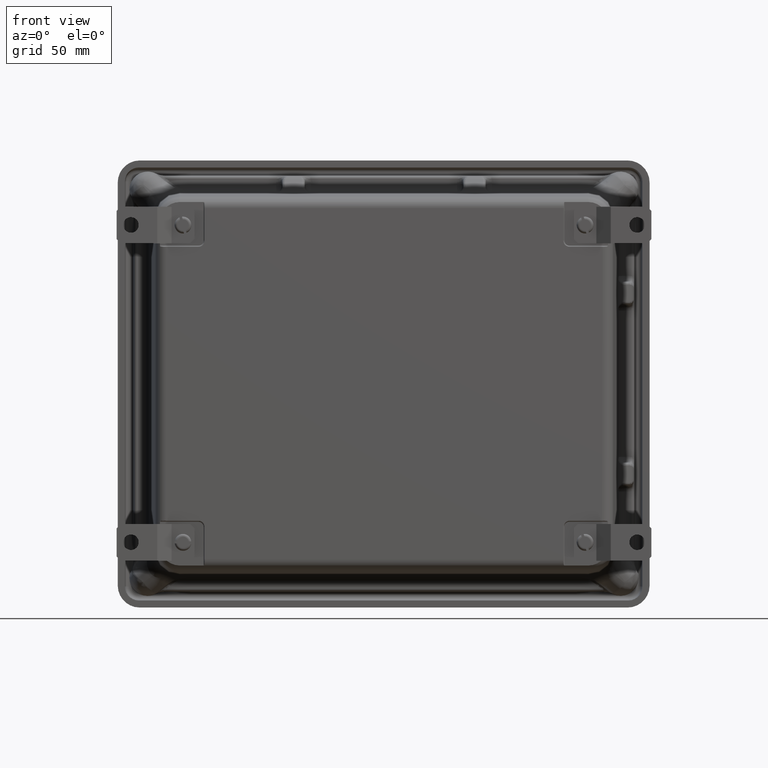
[diagram: clean part render]
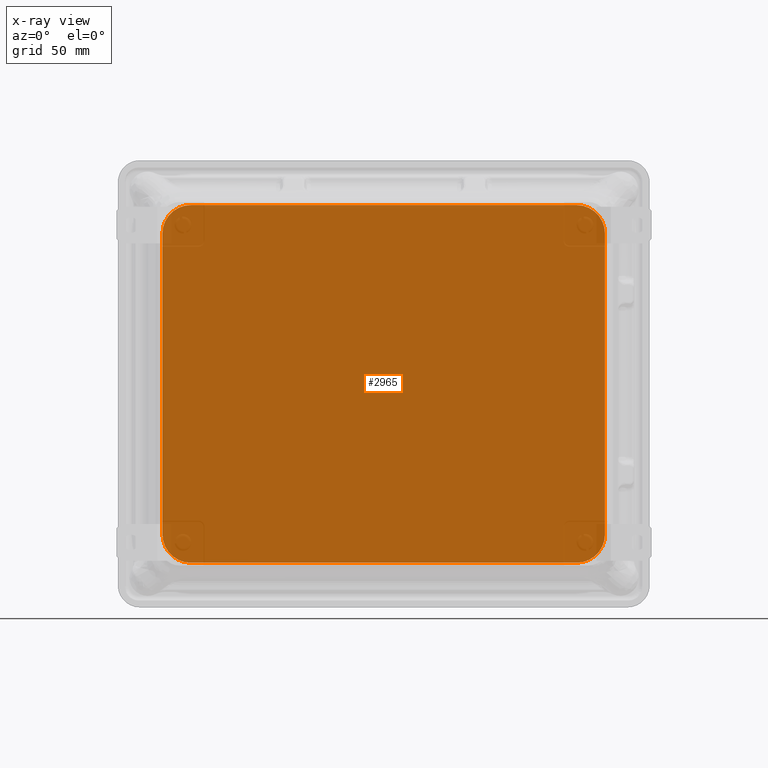
[diagram: x-ray — body ghosted, one internal face saturated and labeled with its STEP entity id]
A machine part, front view, then the same camera in x-ray: the body is ghosted and one INTERNAL B-rep face — a face not visible from any outside direction — is saturated and labeled: STEP entity #2965.
In plain terms, the highlighted planar face has unit normal (0, 1, 0).
Its self-contained STEP definition (entity closure, byte-faithful):
#478 = DIRECTION ( 'NONE',  ( 0.0000000000000000000, 0.0000000000000000000, -1.000000000000000000 ) ) ;
#1858 = VERTEX_POINT ( 'NONE', #16029 ) ;
#2106 = CARTESIAN_POINT ( 'NONE',  ( 4.268000000000001600, 0.1299999999999999800, -3.958872131582903200 ) ) ;
#2965 = ADVANCED_FACE ( 'NONE', ( #26321 ), #13273, .F. ) ;
#3523 = DIRECTION ( 'NONE',  ( -0.0000000000000000000, 1.000000000000000000, -0.0000000000000000000 ) ) ;
#3866 = VECTOR ( 'NONE', #21098, 39.37007874015748100 ) ;
#5094 = AXIS2_PLACEMENT_3D ( 'NONE', #38960, #19715, #478 ) ;
#5365 = AXIS2_PLACEMENT_3D ( 'NONE', #29185, #9974, #32389 ) ;
#5414 = VERTEX_POINT ( 'NONE', #30776 ) ;
#5512 = VERTEX_POINT ( 'NONE', #29235 ) ;
#6427 = CARTESIAN_POINT ( 'NONE',  ( -4.267999999999998000, 0.1299999999999999800, -3.958872131582904100 ) ) ;
#6730 = ORIENTED_EDGE ( 'NONE', *, *, #31345, .T. ) ;
#7270 = EDGE_CURVE ( 'NONE', #19245, #38245, #16107, .T. ) ;
#7356 = AXIS2_PLACEMENT_3D ( 'NONE', #34608, #15405, #37862 ) ;
#7504 = VERTEX_POINT ( 'NONE', #6427 ) ;
#7574 = VECTOR ( 'NONE', #26937, 39.37007874015748100 ) ;
#8047 = ORIENTED_EDGE ( 'NONE', *, *, #31035, .T. ) ;
#8341 = CARTESIAN_POINT ( 'NONE',  ( 4.897872131582907700, 0.1299999999999999800, -4.462000000000000600 ) ) ;
#9974 = DIRECTION ( 'NONE',  ( -0.0000000000000000000, 1.000000000000000000, -0.0000000000000000000 ) ) ;
#11023 = CIRCLE ( 'NONE', #7356, 0.6298721315829042300 ) ;
#12172 = ORIENTED_EDGE ( 'NONE', *, *, #41316, .T. ) ;
#13273 = PLANE ( 'NONE',  #5094 ) ;
#14333 = AXIS2_PLACEMENT_3D ( 'NONE', #22725, #3523, #25965 ) ;
#15405 = DIRECTION ( 'NONE',  ( -0.0000000000000000000, 1.000000000000000000, -0.0000000000000000000 ) ) ;
#15691 = DIRECTION ( 'NONE',  ( -0.0000000000000000000, 1.000000000000000000, -0.0000000000000000000 ) ) ;
#15711 = CARTESIAN_POINT ( 'NONE',  ( 4.268000000000001600, 0.1299999999999999800, 3.958872131582904100 ) ) ;
#15950 = ORIENTED_EDGE ( 'NONE', *, *, #7270, .T. ) ;
#16029 = CARTESIAN_POINT ( 'NONE',  ( -4.897872131582902400, 0.1299999999999999800, 3.328999999999999700 ) ) ;
#16107 = LINE ( 'NONE', #27213, #7574 ) ;
#16731 = VERTEX_POINT ( 'NONE', #2106 ) ;
#17159 = ORIENTED_EDGE ( 'NONE', *, *, #37554, .T. ) ;
#17169 = EDGE_CURVE ( 'NONE', #1858, #19245, #29775, .T. ) ;
#17350 = CARTESIAN_POINT ( 'NONE',  ( -5.400000000000002100, 0.1299999999999999800, -3.958872131582904100 ) ) ;
#17490 = CARTESIAN_POINT ( 'NONE',  ( -4.267999999999999800, 0.1299999999999999800, 3.958872131582903600 ) ) ;
#17642 = CIRCLE ( 'NONE', #20738, 0.6298721315829047800 ) ;
#17788 = EDGE_CURVE ( 'NONE', #16731, #7504, #30738, .T. ) ;
#19047 = VECTOR ( 'NONE', #39688, 39.37007874015748100 ) ;
#19245 = VERTEX_POINT ( 'NONE', #17490 ) ;
#19715 = DIRECTION ( 'NONE',  ( 0.0000000000000000000, -1.000000000000000000, 0.0000000000000000000 ) ) ;
#20738 = AXIS2_PLACEMENT_3D ( 'NONE', #34908, #15691, #38164 ) ;
#21098 = DIRECTION ( 'NONE',  ( 0.0000000000000000000, 0.0000000000000000000, -1.000000000000000000 ) ) ;
#22725 = CARTESIAN_POINT ( 'NONE',  ( -4.267999999999998000, 0.1299999999999999800, -3.328999999999999700 ) ) ;
#24866 = ORIENTED_EDGE ( 'NONE', *, *, #17788, .T. ) ;
#25017 = EDGE_LOOP ( 'NONE', ( #17159, #35629, #24866, #12172, #6730, #38208, #15950, #8047 ) ) ;
#25965 = DIRECTION ( 'NONE',  ( 0.0000000000000000000, 0.0000000000000000000, -1.000000000000000000 ) ) ;
#26321 = FACE_OUTER_BOUND ( 'NONE', #25017, .T. ) ;
#26937 = DIRECTION ( 'NONE',  ( 1.000000000000000000, 0.0000000000000000000, -1.280153698999186300E-016 ) ) ;
#27213 = CARTESIAN_POINT ( 'NONE',  ( -5.400000000000000400, 0.1299999999999999800, 3.958872131582904100 ) ) ;
#27716 = VERTEX_POINT ( 'NONE', #36208 ) ;
#29185 = CARTESIAN_POINT ( 'NONE',  ( -4.267999999999999800, 0.1299999999999999800, 3.328999999999999700 ) ) ;
#29235 = CARTESIAN_POINT ( 'NONE',  ( 4.897872131582905000, 0.1299999999999999800, 3.328999999999999700 ) ) ;
#29775 = CIRCLE ( 'NONE', #5365, 0.6298721315829036700 ) ;
#29794 = EDGE_CURVE ( 'NONE', #27716, #16731, #17642, .T. ) ;
#30738 = LINE ( 'NONE', #17350, #40344 ) ;
#30776 = CARTESIAN_POINT ( 'NONE',  ( -4.897872131582902400, 0.1299999999999999800, -3.328999999999999700 ) ) ;
#31035 = EDGE_CURVE ( 'NONE', #38245, #5512, #11023, .T. ) ;
#31345 = EDGE_CURVE ( 'NONE', #5414, #1858, #36107, .T. ) ;
#32389 = DIRECTION ( 'NONE',  ( 0.0000000000000000000, 0.0000000000000000000, -1.000000000000000000 ) ) ;
#34608 = CARTESIAN_POINT ( 'NONE',  ( 4.268000000000001600, 0.1299999999999999800, 3.328999999999999700 ) ) ;
#34908 = CARTESIAN_POINT ( 'NONE',  ( 4.268000000000001600, 0.1299999999999999800, -3.328999999999998800 ) ) ;
#34969 = LINE ( 'NONE', #8341, #3866 ) ;
#35629 = ORIENTED_EDGE ( 'NONE', *, *, #29794, .T. ) ;
#36107 = LINE ( 'NONE', #36437, #19047 ) ;
#36208 = CARTESIAN_POINT ( 'NONE',  ( 4.897872131582907700, 0.1299999999999999800, -3.328999999999998800 ) ) ;
#36437 = CARTESIAN_POINT ( 'NONE',  ( -4.897872131582903200, 0.1299999999999999800, -4.462000000000001500 ) ) ;
#36566 = DIRECTION ( 'NONE',  ( -1.000000000000000000, 0.0000000000000000000, 0.0000000000000000000 ) ) ;
#37554 = EDGE_CURVE ( 'NONE', #5512, #27716, #34969, .T. ) ;
#37862 = DIRECTION ( 'NONE',  ( 0.0000000000000000000, 0.0000000000000000000, -1.000000000000000000 ) ) ;
#38164 = DIRECTION ( 'NONE',  ( 0.0000000000000000000, 0.0000000000000000000, -1.000000000000000000 ) ) ;
#38208 = ORIENTED_EDGE ( 'NONE', *, *, #17169, .T. ) ;
#38245 = VERTEX_POINT ( 'NONE', #15711 ) ;
#38878 = CIRCLE ( 'NONE', #14333, 0.6298721315829042300 ) ;
#38960 = CARTESIAN_POINT ( 'NONE',  ( -5.400000000000002100, 0.1299999999999999800, -4.462000000000001500 ) ) ;
#39688 = DIRECTION ( 'NONE',  ( 1.641242411333291200E-016, -0.0000000000000000000, 1.000000000000000000 ) ) ;
#40344 = VECTOR ( 'NONE', #36566, 39.37007874015748100 ) ;
#41316 = EDGE_CURVE ( 'NONE', #7504, #5414, #38878, .T. ) ;